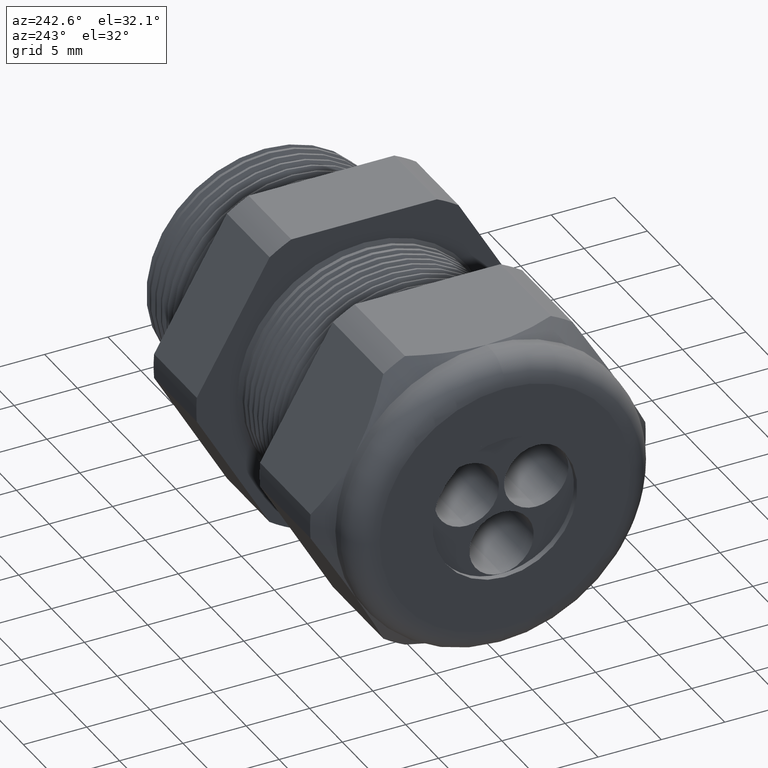
[diagram: clean part render]
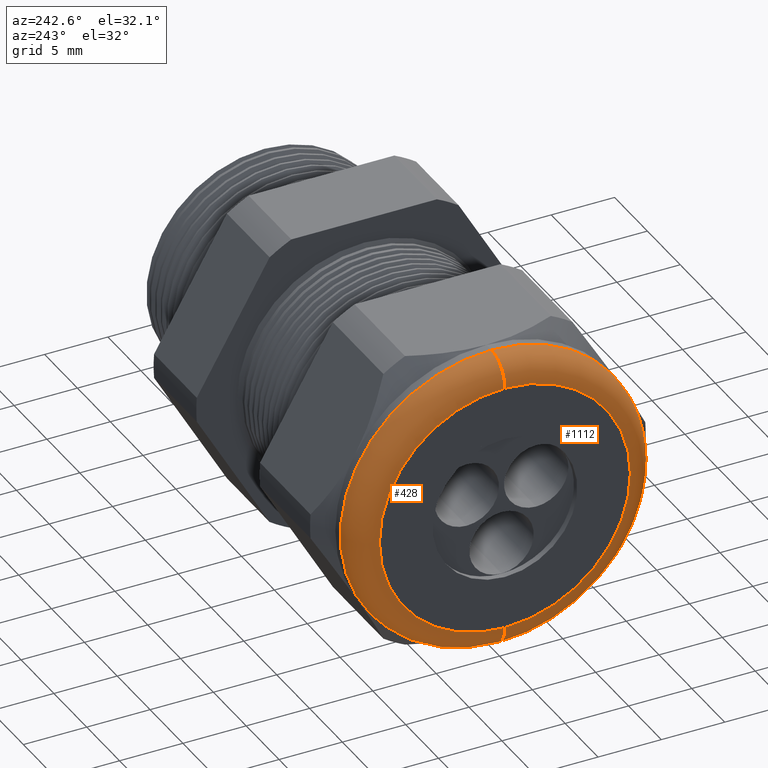
[diagram: same view with one multi-face feature highlighted, each face labeled with its STEP entity id]
A machine part, auxiliary view. The highlighted faces form ONE feature: a constant-radius fillet chain: 2 tangent blend faces with common blend radius 2.032 mm. The faces share edges in the B-rep.
Their STEP definitions:
[1] entity #1112 (Torus):
#348 = VERTEX_POINT ( 'NONE', #2484 ) ;
#349 = VERTEX_POINT ( 'NONE', #2483 ) ;
#351 = EDGE_CURVE ( 'NONE', #348, #352, #2482, .T. ) ;
#352 = VERTEX_POINT ( 'NONE', #2477 ) ;
#355 = VERTEX_POINT ( 'NONE', #2471 ) ;
#412 = EDGE_CURVE ( 'NONE', #349, #355, #2554, .T. ) ;
#955 = EDGE_CURVE ( 'NONE', #352, #355, #3693, .T. ) ;
#963 = EDGE_CURVE ( 'NONE', #349, #348, #3686, .T. ) ;
#1112 = ADVANCED_FACE ( 'NONE', ( #3901 ), #3896, .T. ) ;
#1113 = EDGE_LOOP ( 'NONE', ( #1114, #1115, #1116, #1172 ) ) ;
#1114 = ORIENTED_EDGE ( 'NONE', *, *, #351, .F. ) ;
#1115 = ORIENTED_EDGE ( 'NONE', *, *, #963, .F. ) ;
#1116 = ORIENTED_EDGE ( 'NONE', *, *, #412, .T. ) ;
#1172 = ORIENTED_EDGE ( 'NONE', *, *, #955, .F. ) ;
#2471 = CARTESIAN_POINT ( 'NONE',  ( -1.409999999999999900, 0.0000000000000000000, 0.3899999999999999600 ) ) ;
#2477 = CARTESIAN_POINT ( 'NONE',  ( -1.409999999999999900, 5.265981236333617600E-017, -0.3899999999999999600 ) ) ;
#2478 = DIRECTION ( 'NONE',  ( 0.0000000000000000000, -1.224646799147353900E-016, 1.000000000000000000 ) ) ;
#2479 = DIRECTION ( 'NONE',  ( 0.0000000000000000000, 1.000000000000000000, 1.224646799147353200E-016 ) ) ;
#2480 = CARTESIAN_POINT ( 'NONE',  ( -1.330000000000000100, 4.776122516674676800E-017, -0.3899999999999999600 ) ) ;
#2481 = AXIS2_PLACEMENT_3D ( 'NONE', #2480, #2479, #2478 ) ;
#2482 = CIRCLE ( 'NONE', #2481, 0.07999999999999996000 ) ;
#2483 = CARTESIAN_POINT ( 'NONE',  ( -1.330000000000000100, 5.755839955992558400E-017, 0.4699999999999999200 ) ) ;
#2484 = CARTESIAN_POINT ( 'NONE',  ( -1.330000000000000100, 0.0000000000000000000, -0.4699999999999999200 ) ) ;
#2550 = DIRECTION ( 'NONE',  ( 0.0000000000000000000, 0.0000000000000000000, -1.000000000000000000 ) ) ;
#2551 = DIRECTION ( 'NONE',  ( 0.0000000000000000000, -1.000000000000000000, 0.0000000000000000000 ) ) ;
#2552 = CARTESIAN_POINT ( 'NONE',  ( -1.330000000000000100, 0.0000000000000000000, 0.3899999999999999600 ) ) ;
#2553 = AXIS2_PLACEMENT_3D ( 'NONE', #2552, #2551, #2550 ) ;
#2554 = CIRCLE ( 'NONE', #2553, 0.07999999999999996000 ) ;
#3678 = DIRECTION ( 'NONE',  ( 0.0000000000000000000, 0.0000000000000000000, 1.000000000000000000 ) ) ;
#3679 = DIRECTION ( 'NONE',  ( 1.000000000000000000, 0.0000000000000000000, 0.0000000000000000000 ) ) ;
#3680 = CARTESIAN_POINT ( 'NONE',  ( -1.330000000000000100, 0.0000000000000000000, 0.0000000000000000000 ) ) ;
#3681 = AXIS2_PLACEMENT_3D ( 'NONE', #3680, #3679, #3678 ) ;
#3686 = CIRCLE ( 'NONE', #3681, 0.4699999999999999200 ) ;
#3689 = DIRECTION ( 'NONE',  ( 0.0000000000000000000, 0.0000000000000000000, 1.000000000000000000 ) ) ;
#3690 = DIRECTION ( 'NONE',  ( -1.000000000000000000, 0.0000000000000000000, 0.0000000000000000000 ) ) ;
#3691 = CARTESIAN_POINT ( 'NONE',  ( -1.409999999999999900, 0.0000000000000000000, 0.0000000000000000000 ) ) ;
#3692 = AXIS2_PLACEMENT_3D ( 'NONE', #3691, #3690, #3689 ) ;
#3693 = CIRCLE ( 'NONE', #3692, 0.3899999999999999600 ) ;
#3892 = DIRECTION ( 'NONE',  ( 0.0000000000000000000, 0.0000000000000000000, 1.000000000000000000 ) ) ;
#3893 = DIRECTION ( 'NONE',  ( -1.000000000000000000, 0.0000000000000000000, 0.0000000000000000000 ) ) ;
#3894 = CARTESIAN_POINT ( 'NONE',  ( -1.330000000000000100, 0.0000000000000000000, 0.0000000000000000000 ) ) ;
#3895 = AXIS2_PLACEMENT_3D ( 'NONE', #3894, #3893, #3892 ) ;
#3896 = TOROIDAL_SURFACE ( 'NONE', #3895, 0.3899999999999999600, 0.08000000000000000200 ) ;
#3901 = FACE_OUTER_BOUND ( 'NONE', #1113, .T. ) ;
[2] entity #428 (Torus):
#345 = EDGE_LOOP ( 'NONE', ( #346, #350, #353, #411 ) ) ;
#346 = ORIENTED_EDGE ( 'NONE', *, *, #347, .F. ) ;
#347 = EDGE_CURVE ( 'NONE', #348, #349, #2426, .T. ) ;
#348 = VERTEX_POINT ( 'NONE', #2484 ) ;
#349 = VERTEX_POINT ( 'NONE', #2483 ) ;
#350 = ORIENTED_EDGE ( 'NONE', *, *, #351, .T. ) ;
#351 = EDGE_CURVE ( 'NONE', #348, #352, #2482, .T. ) ;
#352 = VERTEX_POINT ( 'NONE', #2477 ) ;
#353 = ORIENTED_EDGE ( 'NONE', *, *, #354, .F. ) ;
#354 = EDGE_CURVE ( 'NONE', #355, #352, #2476, .T. ) ;
#355 = VERTEX_POINT ( 'NONE', #2471 ) ;
#411 = ORIENTED_EDGE ( 'NONE', *, *, #412, .F. ) ;
#412 = EDGE_CURVE ( 'NONE', #349, #355, #2554, .T. ) ;
#428 = ADVANCED_FACE ( 'NONE', ( #2585 ), #2583, .T. ) ;
#2422 = DIRECTION ( 'NONE',  ( 0.0000000000000000000, 0.0000000000000000000, 1.000000000000000000 ) ) ;
#2423 = DIRECTION ( 'NONE',  ( 1.000000000000000000, 0.0000000000000000000, 0.0000000000000000000 ) ) ;
#2424 = CARTESIAN_POINT ( 'NONE',  ( -1.330000000000000100, 0.0000000000000000000, 0.0000000000000000000 ) ) ;
#2425 = AXIS2_PLACEMENT_3D ( 'NONE', #2424, #2423, #2422 ) ;
#2426 = CIRCLE ( 'NONE', #2425, 0.4699999999999999200 ) ;
#2471 = CARTESIAN_POINT ( 'NONE',  ( -1.409999999999999900, 0.0000000000000000000, 0.3899999999999999600 ) ) ;
#2472 = DIRECTION ( 'NONE',  ( 0.0000000000000000000, 0.0000000000000000000, 1.000000000000000000 ) ) ;
#2473 = DIRECTION ( 'NONE',  ( -1.000000000000000000, 0.0000000000000000000, 0.0000000000000000000 ) ) ;
#2474 = CARTESIAN_POINT ( 'NONE',  ( -1.409999999999999900, 0.0000000000000000000, 0.0000000000000000000 ) ) ;
#2475 = AXIS2_PLACEMENT_3D ( 'NONE', #2474, #2473, #2472 ) ;
#2476 = CIRCLE ( 'NONE', #2475, 0.3899999999999999600 ) ;
#2477 = CARTESIAN_POINT ( 'NONE',  ( -1.409999999999999900, 5.265981236333617600E-017, -0.3899999999999999600 ) ) ;
#2478 = DIRECTION ( 'NONE',  ( 0.0000000000000000000, -1.224646799147353900E-016, 1.000000000000000000 ) ) ;
#2479 = DIRECTION ( 'NONE',  ( 0.0000000000000000000, 1.000000000000000000, 1.224646799147353200E-016 ) ) ;
#2480 = CARTESIAN_POINT ( 'NONE',  ( -1.330000000000000100, 4.776122516674676800E-017, -0.3899999999999999600 ) ) ;
#2481 = AXIS2_PLACEMENT_3D ( 'NONE', #2480, #2479, #2478 ) ;
#2482 = CIRCLE ( 'NONE', #2481, 0.07999999999999996000 ) ;
#2483 = CARTESIAN_POINT ( 'NONE',  ( -1.330000000000000100, 5.755839955992558400E-017, 0.4699999999999999200 ) ) ;
#2484 = CARTESIAN_POINT ( 'NONE',  ( -1.330000000000000100, 0.0000000000000000000, -0.4699999999999999200 ) ) ;
#2550 = DIRECTION ( 'NONE',  ( 0.0000000000000000000, 0.0000000000000000000, -1.000000000000000000 ) ) ;
#2551 = DIRECTION ( 'NONE',  ( 0.0000000000000000000, -1.000000000000000000, 0.0000000000000000000 ) ) ;
#2552 = CARTESIAN_POINT ( 'NONE',  ( -1.330000000000000100, 0.0000000000000000000, 0.3899999999999999600 ) ) ;
#2553 = AXIS2_PLACEMENT_3D ( 'NONE', #2552, #2551, #2550 ) ;
#2554 = CIRCLE ( 'NONE', #2553, 0.07999999999999996000 ) ;
#2582 = CARTESIAN_POINT ( 'NONE',  ( -1.330000000000000100, 0.0000000000000000000, 0.0000000000000000000 ) ) ;
#2583 = TOROIDAL_SURFACE ( 'NONE', #2642, 0.3899999999999999600, 0.08000000000000000200 ) ;
#2585 = FACE_OUTER_BOUND ( 'NONE', #345, .T. ) ;
#2640 = DIRECTION ( 'NONE',  ( 0.0000000000000000000, 0.0000000000000000000, 1.000000000000000000 ) ) ;
#2641 = DIRECTION ( 'NONE',  ( -1.000000000000000000, 0.0000000000000000000, 0.0000000000000000000 ) ) ;
#2642 = AXIS2_PLACEMENT_3D ( 'NONE', #2582, #2641, #2640 ) ;